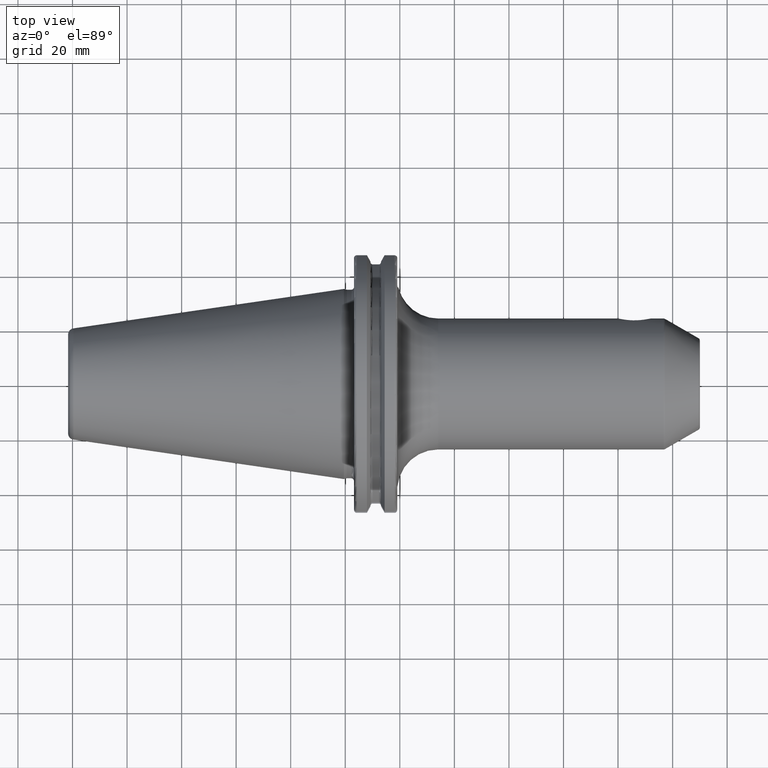
[diagram: clean part render]
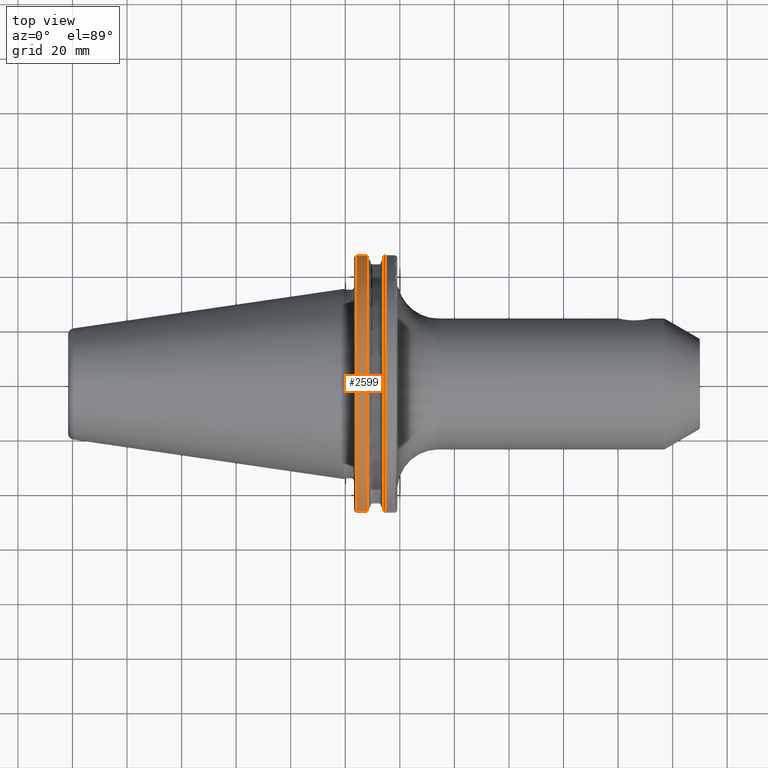
[diagram: same view with one face highlighted and labeled with its STEP entity id]
A machine part, top view. The second image highlights one B-rep face of the part: STEP entity #2599.
In plain terms, the highlighted cylindrical surface (partial cylindrical patch) has radius 48.7375 mm, axis along (1, 0, 0).
Its self-contained STEP definition (entity closure, byte-faithful):
#754=DIRECTION('',(1.E0,0.E0,0.E0));
#755=VECTOR('',#754,3.734621614173E0);
#756=CARTESIAN_POINT('',(4.2E0,4.699929686974E1,1.29E1));
#757=LINE('',#756,#755);
#758=CARTESIAN_POINT('',(7.934621614173E0,0.E0,0.E0));
#759=DIRECTION('',(1.E0,0.E0,0.E0));
#760=DIRECTION('',(0.E0,9.643354064066E-1,2.646832521159E-1));
#761=AXIS2_PLACEMENT_3D('',#758,#759,#760);
#763=DIRECTION('',(1.E0,0.E0,0.E0));
#764=VECTOR('',#763,3.734621614173E0);
#765=CARTESIAN_POINT('',(4.2E0,-4.699929686974E1,1.29E1));
#766=LINE('',#765,#764);
#785=CARTESIAN_POINT('',(7.934621614173E0,4.699929686974E1,1.29E1));
#797=CARTESIAN_POINT('',(7.934621614173E0,-4.699929686974E1,1.29E1));
#810=CARTESIAN_POINT('',(4.2E0,0.E0,0.E0));
#811=DIRECTION('',(1.E0,0.E0,0.E0));
#812=DIRECTION('',(0.E0,9.643354064066E-1,2.646832521159E-1));
#813=AXIS2_PLACEMENT_3D('',#810,#811,#812);
#1558=VERTEX_POINT('',#785);
#1559=VERTEX_POINT('',#797);
#1570=CARTESIAN_POINT('',(4.2E0,4.699929686974E1,1.29E1));
#1571=VERTEX_POINT('',#1570);
#1574=CARTESIAN_POINT('',(4.2E0,-4.699929686974E1,1.29E1));
#1575=VERTEX_POINT('',#1574);
#2586=CARTESIAN_POINT('',(-1.076325E2,0.E0,0.E0));
#2587=DIRECTION('',(1.E0,0.E0,0.E0));
#2588=DIRECTION('',(0.E0,-1.E0,0.E0));
#2589=AXIS2_PLACEMENT_3D('',#2586,#2587,#2588);
#2590=CYLINDRICAL_SURFACE('',#2589,4.87375E1);
#2591=ORIENTED_EDGE('',*,*,#2057,.T.);
#2593=ORIENTED_EDGE('',*,*,#2592,.T.);
#2594=ORIENTED_EDGE('',*,*,#2091,.F.);
#2596=ORIENTED_EDGE('',*,*,#2595,.F.);
#2597=EDGE_LOOP('',(#2591,#2593,#2594,#2596));
#2598=FACE_OUTER_BOUND('',#2597,.F.);
#2599=ADVANCED_FACE('',(#2598),#2590,.T.);
#762=CIRCLE('',#761,4.87375E1);
#814=CIRCLE('',#813,4.87375E1);
#2057=EDGE_CURVE('',#1571,#1558,#757,.T.);
#2091=EDGE_CURVE('',#1575,#1559,#766,.T.);
#2592=EDGE_CURVE('',#1558,#1559,#762,.T.);
#2595=EDGE_CURVE('',#1571,#1575,#814,.T.);